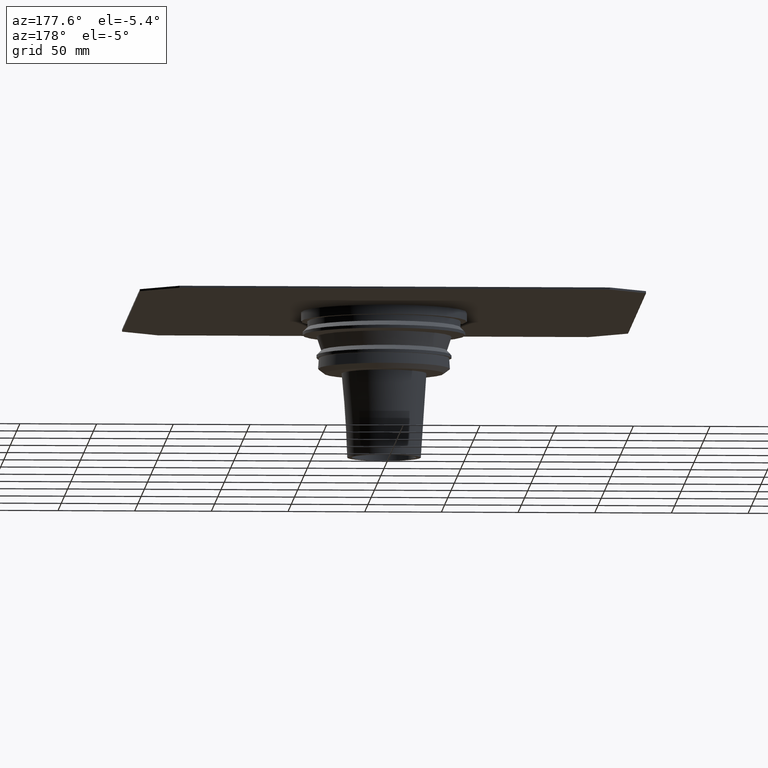
[diagram: clean part render]
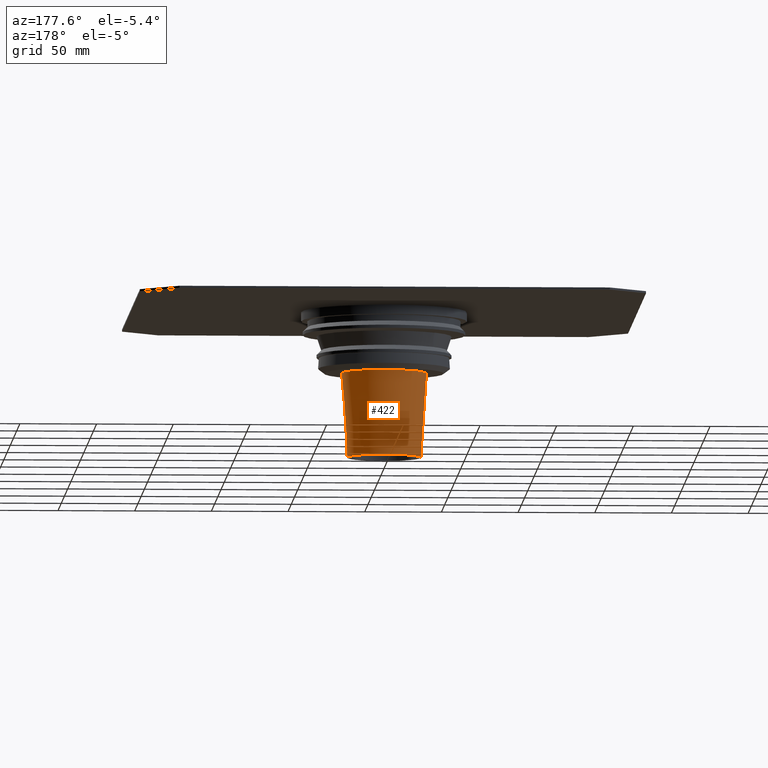
[diagram: same view with one face highlighted and labeled with its STEP entity id]
A machine part, auxiliary view. The second image highlights one B-rep face of the part: STEP entity #422.
In plain terms, the highlighted conical surface has half-angle 3.779 deg.
Its self-contained STEP definition (entity closure, byte-faithful):
#23=CONICAL_SURFACE('',#477,24.,0.0659587263801631);
#40=CIRCLE('',#476,24.);
#41=CIRCLE('',#478,27.633);
#107=ORIENTED_EDGE('',*,*,#184,.T.);
#108=ORIENTED_EDGE('',*,*,#183,.F.);
#183=EDGE_CURVE('',#221,#221,#40,.T.);
#184=EDGE_CURVE('',#222,#222,#41,.T.);
#221=VERTEX_POINT('',#713);
#222=VERTEX_POINT('',#716);
#307=EDGE_LOOP('',(#107));
#308=EDGE_LOOP('',(#108));
#361=FACE_BOUND('',#307,.T.);
#362=FACE_BOUND('',#308,.T.);
#422=ADVANCED_FACE('',(#361,#362),#23,.T.);
#476=AXIS2_PLACEMENT_3D('',#712,#582,#583);
#477=AXIS2_PLACEMENT_3D('',#714,#584,#585);
#478=AXIS2_PLACEMENT_3D('',#715,#586,#587);
#582=DIRECTION('',(0.,0.,-1.));
#583=DIRECTION('',(-1.,0.,0.));
#584=DIRECTION('',(0.,0.,1.));
#585=DIRECTION('',(1.,0.,0.));
#586=DIRECTION('',(0.,0.,-1.));
#587=DIRECTION('',(-1.,0.,0.));
#712=CARTESIAN_POINT('',(0.,0.,-95.));
#713=CARTESIAN_POINT('',(-24.,0.,-95.));
#714=CARTESIAN_POINT('',(0.,0.,-95.));
#715=CARTESIAN_POINT('',(0.,0.,-40.));
#716=CARTESIAN_POINT('',(-27.633,0.,-40.));